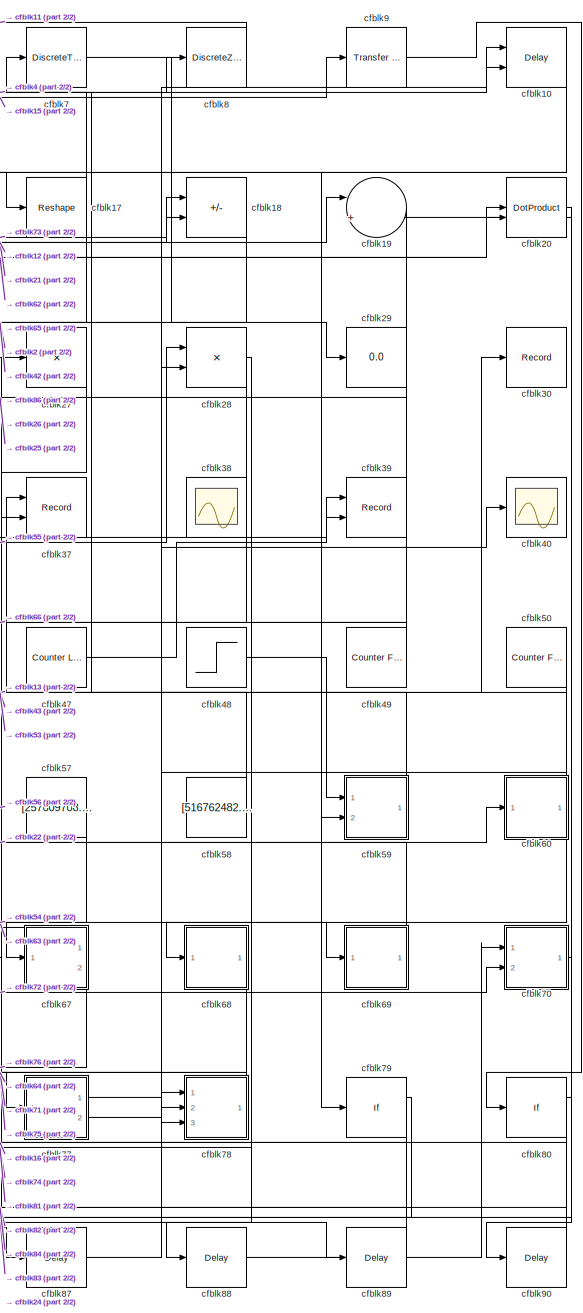
[diagram: root canvas - part 1/2, right side, full height]
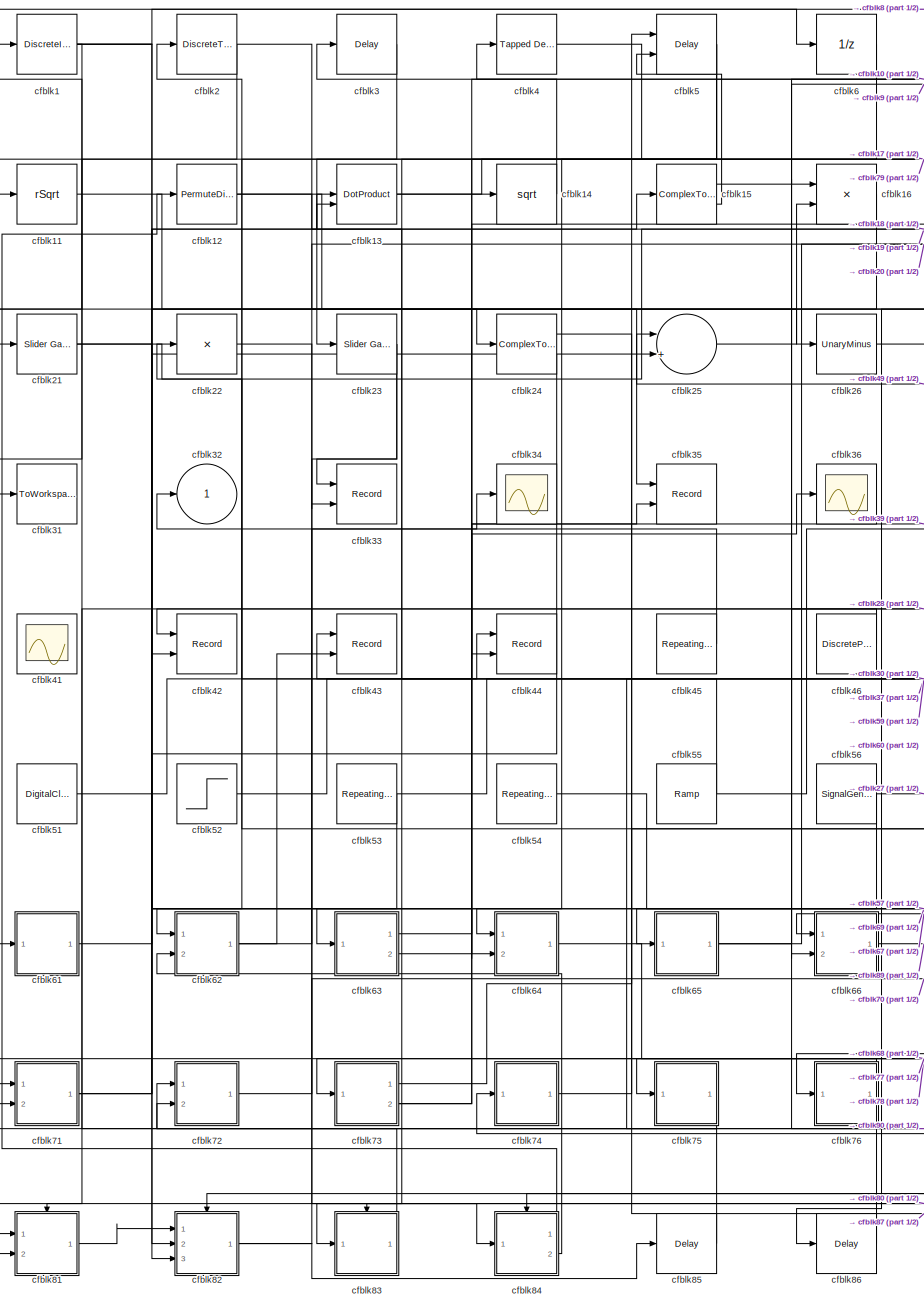
[diagram: root canvas - part 2/2, left side, full height]
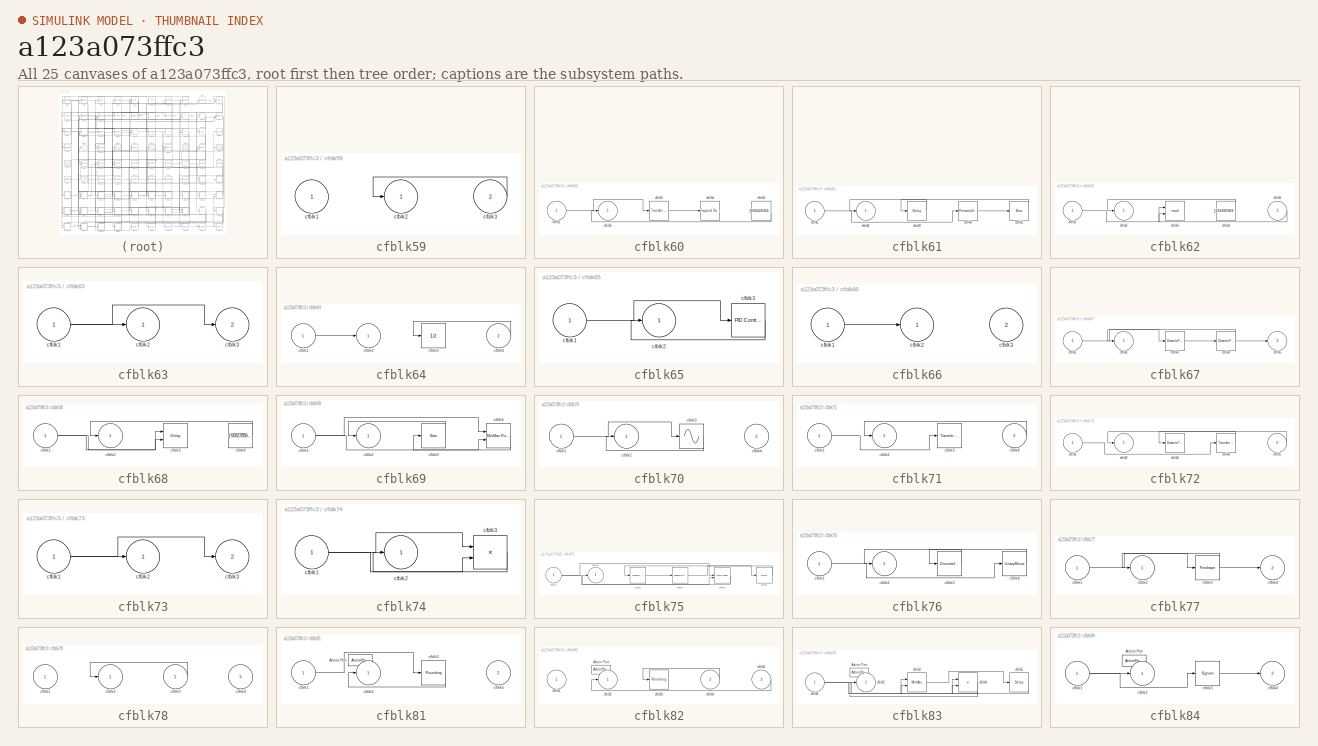
[diagram: thumbnail index - all 25 canvases of the model, root first then tree order]
MODEL slx_a123a073ffc3
KIND model
CONFIG AbsTol = auto
CONFIG EnableMultiTasking = off
CONFIG FixedStep = auto
CONFIG MaxStep = auto
CONFIG MinStep = auto
CONFIG RelTol = 1e-3
CONFIG SampleTimeConstraint = Unconstrained
CONFIG SolverName = VariableStepAuto
CONFIG StartTime = 0.0
CONFIG StopTime = 10.0
BLOCK [DiscreteIntegrator] cfblk1
  ICPrevOutput = DiscIntNeverNeededParam
  ICPrevScaledInput = DiscIntNeverNeededParam
  InitialConditionSetting = Auto
  Ports = [1, 1]
BLOCK [Delay] cfblk10
  DelayLengthSource = Input port
  InputPortMap = u0,p1
  Ports = [2, 1]
  SampleTime = 1
BLOCK [Sqrt] cfblk11
  AlgorithmType = Newton-Raphson
  Operator = rSqrt
BLOCK [PermuteDimensions] cfblk12
BLOCK [DotProduct] cfblk13
  OutDataTypeStr = Inherit: Inherit via internal rule
BLOCK [Sqrt] cfblk14
BLOCK [ComplexToRealImag] cfblk15
  Ports = [1, 2]
BLOCK [Product] cfblk16
  Inputs = **
  Ports = [2, 1]
BLOCK [Reshape] cfblk17
  Ports = [1, 1]
BLOCK [Sum] cfblk18
  IconShape = rectangular
  Inputs = -+
  Ports = [2, 1]
BLOCK [Sum] cfblk19
  Inputs = |++
  Ports = [2, 1]
BLOCK [DiscreteTransferFcn] cfblk2
  InputPortMap = u0
  Ports = [1, 1]
  SampleTime = 1
BLOCK [DotProduct] cfblk20
  OutDataTypeStr = Inherit: Inherit via internal rule
BLOCK [Reference] cfblk21  REF=simulink/Math
Operations/Slider
Gain
  Ports = [1, 1]
  SourceBlock = simulink/Math\nOperations/Slider\nGain
  SourceProductBaseCode = SL
  SourceType = Slider Gain
BLOCK [Product] cfblk22
  Inputs = *
  Ports = [1, 1]
BLOCK [Reference] cfblk23  REF=simulink/Math
Operations/Slider
Gain
  Ports = [1, 1]
  SourceBlock = simulink/Math\nOperations/Slider\nGain
  SourceProductBaseCode = SL
  SourceType = Slider Gain
BLOCK [ComplexToRealImag] cfblk24
  Ports = [1, 2]
BLOCK [Sum] cfblk25
  Inputs = |++
  Ports = [2, 1]
BLOCK [UnaryMinus] cfblk26
BLOCK [Product] cfblk27
  Inputs = *
  Ports = [1, 1]
BLOCK [Product] cfblk28
  Inputs = **
  Ports = [2, 1]
BLOCK [Display] cfblk29
  Decimation = 1
  Ports = [1]
BLOCK [Delay] cfblk3
  InputPortMap = u0
  Ports = [1, 1]
  SampleTime = 1
BLOCK [Record] cfblk30
  FileSettingsInternal = {"entries":[{"content":{"excelSettings":{"content":{},"type":"Streamout.ExcelSettings"}},"type":"Streamout.FileSettingStorage","uuid":"613e592d-018a-4d70-afd0-ab2d035ef272"}],"packageUris":["http://schema.mathworks.com/mf0/streamout_blocks/R2020a"],"version":"1.0"}
  Ports = [1]
  SignalsInternal = {"entries":[{"content":{"signals":[{"content":{"blockPath":["sampleModel278/cfblk30"],"channel":[],"dimensions":[1],"domain":"sampleModel278/cfblk30","lineColor":"#22b573","plots":[1],"port":1,"sid":[""],"signalID":11679,"signalName":"cfblk53"},"type":"RecordBlkView.Signal","uuid":"431496ca-f51d-4317-9847-c7ba54b4be8a"}]},"type":"RecordBlkView.InputSignals","uuid":"2f4c0acb-aa99-4c6b-98d7-5546c209...<+98ch>
  VisualizationBindings = {"sparklinesplugin":{"info":[{"bindingParametersList":[],"subplotID":1}]}}
BLOCK [ToWorkspace] cfblk31
  FixptAsFi = on
  MaxDataPoints = inf
  Ports = [1]
  SampleTime = -1
  SaveFormat = Timeseries
  VariableName = uakakch
BLOCK [Outport] cfblk32
BLOCK [Record] cfblk33
  CompatibilityTag = XY
  FileSettingsInternal = {"entries":[{"content":{"excelSettings":{"content":{},"type":"Streamout.ExcelSettings"}},"type":"Streamout.FileSettingStorage","uuid":"ffadc4b8-0dfd-40c9-9b9d-69bf48ab0bda"}],"packageUris":["http://schema.mathworks.com/mf0/streamout_blocks/R2020a"],"version":"1.0"}
  Layout = [1 1]
  Ports = [2]
  SignalsInternal = {"entries":[{"content":{"signals":[{"content":{"blockPath":["sampleModel278/cfblk33"],"channel":[],"dimensions":[1],"domain":"sampleModel278/cfblk33","lineColor":"#a2142f","plots":[1],"port":1,"sid":[""],"signalID":11723,"signalName":"cfblk23"},"type":"RecordBlkView.Signal","uuid":"c846ee53-8b50-4807-afbd-d3711eb7dd49"},{"content":{"blockPath":["sampleModel278/cfblk33"],"channel":[],"dimensions":[...<+385ch>
  VisualizationBindings = {"xyplotplugin":{"info":[{"series":[{"bindingParametersList":[{"parameter":"X-Axis","signalID":11723,"signalName":"cfblk23"},{"parameter":"Y-Axis","signalID":11727,"signalName":"cfblk23"}],"seriesID":14034}],"subplotID":1}]}}
BLOCK [Scope] cfblk34
  Floating = off
  NumInputPorts = 1
  Ports = [1]
BLOCK [Record] cfblk35
  CompatibilityTag = XY
  FileSettingsInternal = {"entries":[{"content":{"excelSettings":{"content":{},"type":"Streamout.ExcelSettings"}},"type":"Streamout.FileSettingStorage","uuid":"79ac4d0b-32cc-4147-9c5f-160e374bd6f1"}],"packageUris":["http://schema.mathworks.com/mf0/streamout_blocks/R2020a"],"version":"1.0"}
  Layout = [1 1]
  Ports = [2]
  SignalsInternal = {"entries":[{"content":{"signals":[{"content":{"blockPath":["sampleModel278/cfblk35"],"channel":[],"dimensions":[1,1],"domain":"sampleModel278/cfblk35","lineColor":"#a2142f","plots":[1],"port":1,"sid":[""],"signalID":11683,"signalName":"cfblk12"},"type":"RecordBlkView.Signal","uuid":"cee50c23-5377-4988-aab8-e70dc9d74091"},{"content":{"blockPath":["sampleModel278/cfblk35"],"channel":[],"dimensions"...<+389ch>
  VisualizationBindings = {"xyplotplugin":{"info":[{"series":[{"bindingParametersList":[{"parameter":"X-Axis","signalID":11683,"signalName":"cfblk12"},{"parameter":"Y-Axis","signalID":11687,"signalName":"cfblk73:2"}],"seriesID":45542}],"subplotID":1}]}}
BLOCK [Scope] cfblk36
  Floating = off
  NumInputPorts = 1
  Ports = [1]
BLOCK [Record] cfblk37
  CompatibilityTag = XY
  FileSettingsInternal = {"entries":[{"content":{"excelSettings":{"content":{},"type":"Streamout.ExcelSettings"}},"type":"Streamout.FileSettingStorage","uuid":"928dffd0-792b-4854-adee-ad8a3a54d234"}],"packageUris":["http://schema.mathworks.com/mf0/streamout_blocks/R2020a"],"version":"1.0"}
  Layout = [1 1]
  Ports = [2]
  SignalsInternal = {"entries":[{"content":{"signals":[{"content":{"blockPath":["sampleModel278/cfblk37"],"channel":[],"dimensions":[1],"domain":"sampleModel278/cfblk37","lineColor":"#a2142f","plots":[1],"port":1,"sid":[""],"signalID":11691,"signalName":"cfblk75"},"type":"RecordBlkView.Signal","uuid":"ddc6fa25-3967-467f-baa1-9360728fba62"},{"content":{"blockPath":["sampleModel278/cfblk37"],"channel":[],"dimensions":[...<+385ch>
  VisualizationBindings = {"xyplotplugin":{"info":[{"series":[{"bindingParametersList":[{"parameter":"X-Axis","signalID":11691,"signalName":"cfblk75"},{"parameter":"Y-Axis","signalID":11695,"signalName":"cfblk27"}],"seriesID":6918}],"subplotID":1}]}}
BLOCK [Scope] cfblk38
  Floating = on
  NumInputPorts = 1
  Ports = []
BLOCK [Record] cfblk39
  CompatibilityTag = XY
  FileSettingsInternal = {"entries":[{"content":{"excelSettings":{"content":{},"type":"Streamout.ExcelSettings"}},"type":"Streamout.FileSettingStorage","uuid":"a45da438-403e-40e9-b71e-507e939632aa"}],"packageUris":["http://schema.mathworks.com/mf0/streamout_blocks/R2020a"],"version":"1.0"}
  Layout = [1 1]
  Ports = [2]
  SignalsInternal = {"entries":[{"content":{"signals":[{"content":{"blockPath":["sampleModel278/cfblk39"],"channel":[],"dimensions":[1],"domain":"sampleModel278/cfblk39","lineColor":"#a2142f","plots":[1],"port":1,"sid":[""],"signalID":11731,"signalName":"cfblk47"},"type":"RecordBlkView.Signal","uuid":"eae857c1-9a3c-4252-906c-d31a20cc3c92"},{"content":{"blockPath":["sampleModel278/cfblk39"],"channel":[],"dimensions":[...<+387ch>
  VisualizationBindings = {"xyplotplugin":{"info":[{"series":[{"bindingParametersList":[{"parameter":"X-Axis","signalID":11731,"signalName":"cfblk47"},{"parameter":"Y-Axis","signalID":11735,"signalName":"cfblk63:2"}],"seriesID":663}],"subplotID":1}]}}
BLOCK [Reference] cfblk4  REF=simulink/Discrete/Tapped Delay
  Ports = [1, 1]
  SourceBlock = simulink/Discrete/Tapped Delay
  SourceProductBaseCode = SL
  SourceType = Tapped Delay Line
BLOCK [Scope] cfblk40
  Floating = off
  NumInputPorts = 1
  Ports = [1]
BLOCK [Scope] cfblk41
  Floating = on
  NumInputPorts = 1
  Ports = []
BLOCK [Record] cfblk42
  CompatibilityTag = XY
  FileSettingsInternal = {"entries":[{"content":{"excelSettings":{"content":{},"type":"Streamout.ExcelSettings"}},"type":"Streamout.FileSettingStorage","uuid":"d6f97b6e-fb10-41bd-b103-1d8caa88e39f"}],"packageUris":["http://schema.mathworks.com/mf0/streamout_blocks/R2020a"],"version":"1.0"}
  Layout = [1 1]
  Ports = [2]
  SignalsInternal = {"entries":[{"content":{"signals":[{"content":{"blockPath":["sampleModel278/cfblk42"],"channel":[],"dimensions":[1],"domain":"sampleModel278/cfblk42","lineColor":"#a2142f","plots":[1],"port":1,"sid":[""],"signalID":11699,"signalName":"cfblk46"},"type":"RecordBlkView.Signal","uuid":"251f6560-360e-4ff2-ba4c-21c8b0cdd92d"},{"content":{"blockPath":["sampleModel278/cfblk42"],"channel":[],"dimensions":[...<+387ch>
  VisualizationBindings = {"xyplotplugin":{"info":[{"series":[{"bindingParametersList":[{"parameter":"X-Axis","signalID":11699,"signalName":"cfblk46"},{"parameter":"Y-Axis","signalID":11703,"signalName":"cfblk18"}],"seriesID":19161}],"subplotID":1}]}}
BLOCK [Record] cfblk43
  CompatibilityTag = XY
  FileSettingsInternal = {"entries":[{"content":{"excelSettings":{"content":{},"type":"Streamout.ExcelSettings"}},"type":"Streamout.FileSettingStorage","uuid":"49f19f1c-f43c-45ea-9add-c7aba8d2dc19"}],"packageUris":["http://schema.mathworks.com/mf0/streamout_blocks/R2020a"],"version":"1.0"}
  Layout = [1 1]
  Ports = [2]
  SignalsInternal = {"entries":[{"content":{"signals":[{"content":{"blockPath":["sampleModel278/cfblk43"],"channel":[],"dimensions":[1],"domain":"sampleModel278/cfblk43","lineColor":"#a2142f","plots":[1],"port":1,"sid":[""],"signalID":11707,"signalName":"cfblk59"},"type":"RecordBlkView.Signal","uuid":"f262e0a1-0dd0-4162-bc04-4042543cb925"},{"content":{"blockPath":["sampleModel278/cfblk43"],"channel":[],"dimensions":[...<+385ch>
  VisualizationBindings = {"xyplotplugin":{"info":[{"series":[{"bindingParametersList":[{"parameter":"X-Axis","signalID":11707,"signalName":"cfblk59"},{"parameter":"Y-Axis","signalID":11711,"signalName":"cfblk62"}],"seriesID":42773}],"subplotID":1}]}}
BLOCK [Record] cfblk44
  CompatibilityTag = XY
  FileSettingsInternal = {"entries":[{"content":{"excelSettings":{"content":{},"type":"Streamout.ExcelSettings"}},"type":"Streamout.FileSettingStorage","uuid":"f9e977a4-f4ba-4cf2-828c-4992706f1371"}],"packageUris":["http://schema.mathworks.com/mf0/streamout_blocks/R2020a"],"version":"1.0"}
  Layout = [1 1]
  Ports = [2]
  SignalsInternal = {"entries":[{"content":{"signals":[{"content":{"blockPath":["sampleModel278/cfblk44"],"channel":[],"dimensions":[1],"domain":"sampleModel278/cfblk44","lineColor":"#a2142f","plots":[1],"port":1,"sid":[""],"signalID":11715,"signalName":"cfblk51"},"type":"RecordBlkView.Signal","uuid":"5493c28d-61f1-4e5c-a4f0-a367b1d50efd"},{"content":{"blockPath":["sampleModel278/cfblk44"],"channel":[],"dimensions":[...<+384ch>
  VisualizationBindings = {"xyplotplugin":{"info":[{"series":[{"bindingParametersList":[{"parameter":"X-Axis","signalID":11715,"signalName":"cfblk51"},{"parameter":"Y-Axis","signalID":11719,"signalName":"cfblk5"}],"seriesID":29617}],"subplotID":1}]}}
BLOCK [Reference] cfblk45  REF=simulink/Sources/Repeating
Sequence
  Ports = [0, 1]
  SourceBlock = simulink/Sources/Repeating\nSequence
  SourceProductBaseCode = SL
  SourceType = Repeating table
BLOCK [DiscretePulseGenerator] cfblk46
  Amplitude = [442704016.821276]
  Period = [38740735.778714]
  PhaseDelay = [4.000000]
  Ports = [0, 1]
  PulseType = Time based
  PulseWidth = 5
BLOCK [Reference] cfblk47  REF=simulink/Sources/Counter
Limited
  Ports = [0, 1]
  SourceBlock = simulink/Sources/Counter\nLimited
  SourceProductBaseCode = SL
  SourceType = Counter Limited
BLOCK [Step] cfblk48
  After = [-396190397.045518]
  Before = [285534383.298485]
  SampleTime = 0
  Time = [44.000000]
BLOCK [Reference] cfblk49  REF=simulink/Sources/Counter
Free-Running
  Ports = [0, 1]
  SourceBlock = simulink/Sources/Counter\nFree-Running
  SourceProductBaseCode = SL
  SourceType = Counter Free-Running
BLOCK [Delay] cfblk5
  DelayLengthSource = Input port
  InputPortMap = u0,p1
  Ports = [2, 1]
  SampleTime = 1
BLOCK [Reference] cfblk50  REF=simulink/Sources/Counter
Free-Running
  Ports = [0, 1]
  SourceBlock = simulink/Sources/Counter\nFree-Running
  SourceProductBaseCode = SL
  SourceType = Counter Free-Running
BLOCK [DigitalClock] cfblk51
BLOCK [Step] cfblk52
  After = [-150879894.686397]
  Before = [-93639301.169280]
  SampleTime = 0
  Time = [21.000000]
BLOCK [Reference] cfblk53  REF=simulink/Sources/Repeating
Sequence
Interpolated
  Ports = [0, 1]
  SourceBlock = simulink/Sources/Repeating\nSequence\nInterpolated
  SourceProductBaseCode = SL
  SourceType = Repeating Sequence Interpolated
BLOCK [Reference] cfblk54  REF=simulink/Sources/Repeating
Sequence
  Ports = [0, 1]
  SourceBlock = simulink/Sources/Repeating\nSequence
  SourceProductBaseCode = SL
  SourceType = Repeating table
BLOCK [Reference] cfblk55  REF=simulink/Sources/Ramp
  Ports = [0, 1]
  SourceBlock = simulink/Sources/Ramp
  SourceProductBaseCode = SL
  SourceType = Ramp
BLOCK [SignalGenerator] cfblk56
  Amplitude = [-774185668.504646]
  Ports = [0, 1]
  Units = rad/sec
  WaveForm = sawtooth
BLOCK [Constant] cfblk57
  SampleTime = 1
  Value = [257609708.377456]
BLOCK [Constant] cfblk58
  SampleTime = 1
  Value = [516762482.483653]
BLOCK [SubSystem] cfblk59
  Ports = [2, 1]
  RequestExecContextInheritance = off
BLOCK [Inport] cfblk59/cfblk1
BLOCK [Outport] cfblk59/cfblk2
BLOCK [Inport] cfblk59/cfblk3
  Port = 2
BLOCK [UnitDelay] cfblk6
  HasFrameUpgradeWarning = on
BLOCK [SubSystem] cfblk60
  Ports = [1, 1]
  RequestExecContextInheritance = off
BLOCK [Inport] cfblk60/cfblk1
BLOCK [Outport] cfblk60/cfblk2
BLOCK [Reference] cfblk60/cfblk3  REF=simulink/Discrete/Transfer Fcn
Lead or Lag
  Ports = [1, 1]
  SourceBlock = simulink/Discrete/Transfer Fcn\nLead or Lag
  SourceProductBaseCode = SL
  SourceType = Lead or Lag Compensator
BLOCK [Reference] cfblk60/cfblk4  REF=simulink/Discrete/Tapped Delay
  Ports = [1, 1]
  SourceBlock = simulink/Discrete/Tapped Delay
  SourceProductBaseCode = SL
  SourceType = Tapped Delay Line
BLOCK [Constant] cfblk60/cfblk5
  SampleTime = 1
  Value = [936428364.928162]
BLOCK [SubSystem] cfblk61
  Ports = [1, 1]
  RequestExecContextInheritance = off
BLOCK [Inport] cfblk61/cfblk1
BLOCK [Outport] cfblk61/cfblk2
BLOCK [Delay] cfblk61/cfblk3
  InputPortMap = u0
  Ports = [1, 1]
  SampleTime = 1
BLOCK [PermuteDimensions] cfblk61/cfblk4
BLOCK [Bias] cfblk61/cfblk5
  Bias = [554188684.425139]
  SaturateOnIntegerOverflow = off
BLOCK [SubSystem] cfblk62
  Ports = [2, 1]
  RequestExecContextInheritance = off
BLOCK [Inport] cfblk62/cfblk1
BLOCK [Outport] cfblk62/cfblk2
BLOCK [Math] cfblk62/cfblk3
  Operator = mod
  Ports = [2, 1]
BLOCK [Constant] cfblk62/cfblk4
  SampleTime = 1
  Value = [193490383.438334]
BLOCK [Inport] cfblk62/cfblk5
  Port = 2
BLOCK [SubSystem] cfblk63
  Ports = [1, 2]
  RequestExecContextInheritance = off
BLOCK [Inport] cfblk63/cfblk1
BLOCK [Outport] cfblk63/cfblk2
BLOCK [Outport] cfblk63/cfblk3
  Port = 2
BLOCK [SubSystem] cfblk64
  Ports = [2, 1]
  RequestExecContextInheritance = off
BLOCK [Inport] cfblk64/cfblk1
BLOCK [Outport] cfblk64/cfblk2
BLOCK [UnitDelay] cfblk64/cfblk3
  HasFrameUpgradeWarning = on
BLOCK [Inport] cfblk64/cfblk4
  Port = 2
BLOCK [SubSystem] cfblk65
  Ports = [1, 1]
  RequestExecContextInheritance = off
BLOCK [Inport] cfblk65/cfblk1
BLOCK [Outport] cfblk65/cfblk2
BLOCK [Reference] cfblk65/cfblk3  REF=slpidlib/PID Controller
  Ports = [1, 1]
  SourceBlock = slpidlib/PID Controller
  SourceProductBaseCode = SL
  SourceType = PID 1dof
BLOCK [SubSystem] cfblk66
  Ports = [2, 1]
  RequestExecContextInheritance = off
BLOCK [Inport] cfblk66/cfblk1
BLOCK [Outport] cfblk66/cfblk2
BLOCK [Inport] cfblk66/cfblk3
  Port = 2
BLOCK [SubSystem] cfblk67
  Ports = [1, 2]
  RequestExecContextInheritance = off
BLOCK [Inport] cfblk67/cfblk1
BLOCK [Outport] cfblk67/cfblk2
BLOCK [DiscreteFilter] cfblk67/cfblk3
  InputPortMap = u0
  Ports = [1, 1]
  SampleTime = 1
BLOCK [DiscreteFir] cfblk67/cfblk4
  InputPortMap = u0
  OutputPortMap = o0
  Ports = [1, 1]
  SampleTime = 1
BLOCK [Outport] cfblk67/cfblk5
  Port = 2
BLOCK [SubSystem] cfblk68
  Ports = [1, 1]
  RequestExecContextInheritance = off
BLOCK [Inport] cfblk68/cfblk1
BLOCK [Outport] cfblk68/cfblk2
BLOCK [Delay] cfblk68/cfblk3
  DelayLengthSource = Input port
  InputPortMap = u0,p1
  Ports = [2, 1]
  SampleTime = 1
BLOCK [Constant] cfblk68/cfblk4
  SampleTime = 1
  Value = [-50827859.087769]
BLOCK [SubSystem] cfblk69
  Ports = [1, 1]
  RequestExecContextInheritance = off
BLOCK [Inport] cfblk69/cfblk1
BLOCK [Outport] cfblk69/cfblk2
BLOCK [Bias] cfblk69/cfblk3
  Bias = [-483781049.236620]
  SaturateOnIntegerOverflow = off
BLOCK [Reference] cfblk69/cfblk4  REF=simulink/Math
Operations/MinMax
Running
Resettable
  Ports = [2, 1]
  SourceBlock = simulink/Math\nOperations/MinMax\nRunning\nResettable
  SourceProductBaseCode = SL
  SourceType = MinMax Running Resettable
BLOCK [DiscreteTransferFcn] cfblk7
  InputPortMap = u0
  Ports = [1, 1]
  SampleTime = 1
BLOCK [SubSystem] cfblk70
  Ports = [2, 1]
  RequestExecContextInheritance = off
BLOCK [Inport] cfblk70/cfblk1
BLOCK [Outport] cfblk70/cfblk2
BLOCK [Sin] cfblk70/cfblk3
  Ports = [1, 1]
  SampleTime = 0
  TimeSource = Use external signal
BLOCK [Inport] cfblk70/cfblk4
  Port = 2
BLOCK [SubSystem] cfblk71
  Ports = [2, 1]
  RequestExecContextInheritance = off
BLOCK [Inport] cfblk71/cfblk1
BLOCK [Outport] cfblk71/cfblk2
BLOCK [Reference] cfblk71/cfblk3  REF=simulink/Discrete/Transfer Fcn
First Order
  Ports = [1, 1]
  SourceBlock = simulink/Discrete/Transfer Fcn\nFirst Order
  SourceProductBaseCode = SL
  SourceType = First Order Transfer Fcn
BLOCK [Inport] cfblk71/cfblk4
  Port = 2
BLOCK [SubSystem] cfblk72
  Ports = [2, 1]
  RequestExecContextInheritance = off
BLOCK [Inport] cfblk72/cfblk1
BLOCK [Outport] cfblk72/cfblk2
BLOCK [DiscreteTransferFcn] cfblk72/cfblk3
  InputPortMap = u0
  Ports = [1, 1]
  SampleTime = 1
BLOCK [Reference] cfblk72/cfblk4  REF=simulink/Discrete/Transfer Fcn
Real Zero
  Ports = [1, 1]
  SourceBlock = simulink/Discrete/Transfer Fcn\nReal Zero
  SourceProductBaseCode = SL
  SourceType = Transfer Fcn Real Zero
BLOCK [Inport] cfblk72/cfblk5
  Port = 2
BLOCK [SubSystem] cfblk73
  Ports = [1, 2]
  RequestExecContextInheritance = off
BLOCK [Inport] cfblk73/cfblk1
BLOCK [Outport] cfblk73/cfblk2
BLOCK [Outport] cfblk73/cfblk3
  Port = 2
BLOCK [SubSystem] cfblk74
  Ports = [1, 1]
  RequestExecContextInheritance = off
BLOCK [Inport] cfblk74/cfblk1
BLOCK [Outport] cfblk74/cfblk2
BLOCK [Product] cfblk74/cfblk3
  Ports = [2, 1]
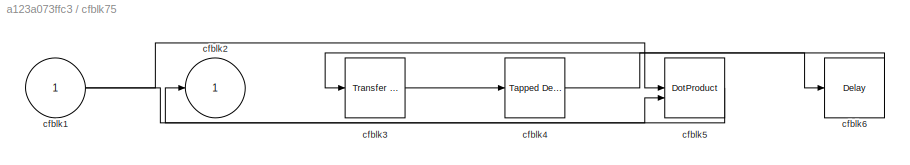
BLOCK [SubSystem] cfblk75
  Ports = [1, 1]
  RequestExecContextInheritance = off
BLOCK [Inport] cfblk75/cfblk1
BLOCK [Outport] cfblk75/cfblk2
BLOCK [Reference] cfblk75/cfblk3  REF=simulink/Discrete/Transfer Fcn
Lead or Lag
  Ports = [1, 1]
  SourceBlock = simulink/Discrete/Transfer Fcn\nLead or Lag
  SourceProductBaseCode = SL
  SourceType = Lead or Lag Compensator
BLOCK [Reference] cfblk75/cfblk4  REF=simulink/Discrete/Tapped Delay
  Ports = [1, 1]
  SourceBlock = simulink/Discrete/Tapped Delay
  SourceProductBaseCode = SL
  SourceType = Tapped Delay Line
BLOCK [DotProduct] cfblk75/cfblk5
  OutDataTypeStr = Inherit: Inherit via internal rule
BLOCK [Delay] cfblk75/cfblk6
  InputPortMap = u0
  Ports = [1, 1]
  SampleTime = 1
BLOCK [SubSystem] cfblk76
  Ports = [1, 1]
  RequestExecContextInheritance = off
BLOCK [Inport] cfblk76/cfblk1
BLOCK [Outport] cfblk76/cfblk2
BLOCK [DiscreteIntegrator] cfblk76/cfblk3
  ICPrevOutput = DiscIntNeverNeededParam
  ICPrevScaledInput = DiscIntNeverNeededParam
  InitialConditionSetting = Auto
  Ports = [1, 1]
BLOCK [UnaryMinus] cfblk76/cfblk4
BLOCK [SubSystem] cfblk77
  Ports = [1, 2]
  RequestExecContextInheritance = off
BLOCK [Inport] cfblk77/cfblk1
BLOCK [Outport] cfblk77/cfblk2
BLOCK [Reshape] cfblk77/cfblk3
  Ports = [1, 1]
BLOCK [Outport] cfblk77/cfblk4
  Port = 2
BLOCK [SubSystem] cfblk78
  Ports = [3, 1]
  RequestExecContextInheritance = off
BLOCK [Inport] cfblk78/cfblk1
BLOCK [Outport] cfblk78/cfblk2
BLOCK [Inport] cfblk78/cfblk3
  Port = 2
BLOCK [Inport] cfblk78/cfblk4
  Port = 3
BLOCK [If] cfblk79
  IfExpression = u1 >= 0
  Ports = [1, 2]
  SampleTime = 1
BLOCK [DiscreteZeroPole] cfblk8
  Gain = 1
  Poles = [0 0.5]
BLOCK [If] cfblk80
  IfExpression = u1 >= 0
  Ports = [1, 2]
  SampleTime = 1
BLOCK [SubSystem] cfblk81
  Ports = [2, 1, 0, 0, 0, 0, 0, 1]
  RequestExecContextInheritance = off
  TreatAsAtomicUnit = on
BLOCK [ActionPort] cfblk81/Action Port
  ActionPortLabel = if(u1 >= 0)
BLOCK [Inport] cfblk81/cfblk1
BLOCK [Outport] cfblk81/cfblk2
BLOCK [Rounding] cfblk81/cfblk3
BLOCK [Inport] cfblk81/cfblk4
  Port = 2
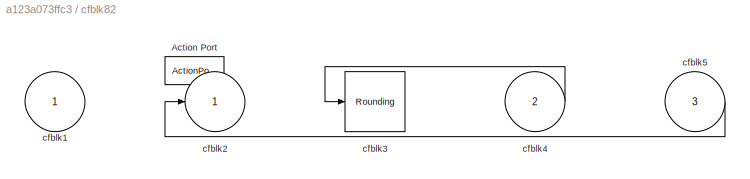
BLOCK [SubSystem] cfblk82
  Ports = [3, 1, 0, 0, 0, 0, 0, 1]
  RequestExecContextInheritance = off
  TreatAsAtomicUnit = on
BLOCK [ActionPort] cfblk82/Action Port
  ActionPortLabel = else
BLOCK [Inport] cfblk82/cfblk1
BLOCK [Outport] cfblk82/cfblk2
BLOCK [Rounding] cfblk82/cfblk3
BLOCK [Inport] cfblk82/cfblk4
  Port = 2
BLOCK [Inport] cfblk82/cfblk5
  Port = 3
BLOCK [SubSystem] cfblk83
  Ports = [1, 1, 0, 0, 0, 0, 0, 1]
  RequestExecContextInheritance = off
  TreatAsAtomicUnit = on
BLOCK [ActionPort] cfblk83/Action Port
  ActionPortLabel = if(u1 >= 0)
BLOCK [Inport] cfblk83/cfblk1
BLOCK [Outport] cfblk83/cfblk2
BLOCK [MinMax] cfblk83/cfblk3
  Function = max
  Inputs = 2
  Ports = [2, 1]
BLOCK [Product] cfblk83/cfblk4
  Inputs = **
  Ports = [2, 1]
BLOCK [Delay] cfblk83/cfblk5
  InputPortMap = u0
  Ports = [1, 1]
BLOCK [SubSystem] cfblk84
  Ports = [1, 2, 0, 0, 0, 0, 0, 1]
  RequestExecContextInheritance = off
  TreatAsAtomicUnit = on
BLOCK [ActionPort] cfblk84/Action Port
  ActionPortLabel = else
BLOCK [Inport] cfblk84/cfblk1
BLOCK [Outport] cfblk84/cfblk2
BLOCK [Signum] cfblk84/cfblk3
BLOCK [Outport] cfblk84/cfblk4
  Port = 2
BLOCK [Delay] cfblk85
  InputPortMap = u0
  Ports = [1, 1]
  SampleTime = 1
BLOCK [Delay] cfblk86
  InputPortMap = u0
  Ports = [1, 1]
  SampleTime = 1
BLOCK [Delay] cfblk87
  InputPortMap = u0
  Ports = [1, 1]
  SampleTime = 1
BLOCK [Delay] cfblk88
  InputPortMap = u0
  Ports = [1, 1]
  SampleTime = 1
BLOCK [Delay] cfblk89
  InputPortMap = u0
  Ports = [1, 1]
  SampleTime = 1
BLOCK [Reference] cfblk9  REF=simulink/Discrete/Transfer Fcn
Real Zero
  Ports = [1, 1]
  SourceBlock = simulink/Discrete/Transfer Fcn\nReal Zero
  SourceProductBaseCode = SL
  SourceType = Transfer Fcn Real Zero
BLOCK [Delay] cfblk90
  InputPortMap = u0
  Ports = [1, 1]
  SampleTime = 1
NET cfblk10:1 -> cfblk59:2, cfblk81:2
LINE cfblk11:1 -> cfblk24:1
NET cfblk12:1 -> cfblk18:2, cfblk35:1
NET cfblk13:1 -> cfblk17:1, cfblk8:1
LINE cfblk14:1 -> cfblk3:1
LINE cfblk15:1 -> cfblk9:1
LINE cfblk15:2 -> cfblk5:2
LINE cfblk16:1 -> cfblk61:1
NET cfblk17:1 -> cfblk4:1, cfblk86:1
LINE cfblk18:1 -> cfblk42:2
NET cfblk19:1 -> cfblk66:2, cfblk88:1
NET cfblk1:1 -> cfblk26:1, cfblk31:1, cfblk64:2, cfblk6:1
LINE cfblk20:1 -> cfblk90:1
NET cfblk21:1 -> cfblk19:1, cfblk69:1
LINE cfblk22:1 -> cfblk84:1
NET cfblk23:1 -> cfblk33:1, cfblk33:2
LINE cfblk24:1 -> cfblk87:1
LINE cfblk24:2 -> cfblk82:3
LINE cfblk25:1 -> cfblk16:2
LINE cfblk26:1 -> cfblk78:3
LINE cfblk27:1 -> cfblk37:2
NET cfblk28:1 -> cfblk74:1, cfblk81:1
NET cfblk2:1 -> cfblk21:1, cfblk28:2
LINE cfblk3:1 -> cfblk23:1
LINE cfblk45:1 -> cfblk32:1
LINE cfblk46:1 -> cfblk42:1
LINE cfblk47:1 -> cfblk39:1
LINE cfblk48:1 -> cfblk59:1
LINE cfblk49:1 -> cfblk25:1
LINE cfblk4:1 -> cfblk79:1
LINE cfblk50:1 -> cfblk78:2
LINE cfblk51:1 -> cfblk44:1
LINE cfblk52:1 -> cfblk14:1
NET cfblk53:1 -> cfblk30:1, cfblk82:2
LINE cfblk54:1 -> cfblk67:1
NET cfblk55:1 -> cfblk28:1, cfblk2:1
NET cfblk56:1 -> cfblk27:1, cfblk65:1
LINE cfblk57:1 -> cfblk63:1
LINE cfblk58:1 -> cfblk7:1
LINE cfblk59/cfblk3:1 -> cfblk59/cfblk2:1
LINE cfblk59:1 -> cfblk43:1
NET cfblk5:1 -> cfblk44:2, cfblk62:1, cfblk83:1
LINE cfblk60/cfblk1:1 -> cfblk60/cfblk3:1
LINE cfblk60/cfblk3:1 -> cfblk60/cfblk4:1
LINE cfblk60/cfblk5:1 -> cfblk60/cfblk2:1
NET cfblk60:1 -> cfblk13:2, cfblk68:1
LINE cfblk61/cfblk1:1 -> cfblk61/cfblk4:1
LINE cfblk61/cfblk3:1 -> cfblk61/cfblk2:1
LINE cfblk61/cfblk4:1 -> cfblk61/cfblk5:1
LINE cfblk61/cfblk5:1 -> cfblk61/cfblk3:1
LINE cfblk61:1 -> cfblk15:1
LINE cfblk62/cfblk1:1 -> cfblk62/cfblk3:2
LINE cfblk62/cfblk4:1 -> cfblk62/cfblk2:1
LINE cfblk62/cfblk5:1 -> cfblk62/cfblk3:1
NET cfblk62:1 -> cfblk20:2, cfblk43:2
NET cfblk63/cfblk1:1 -> cfblk63/cfblk2:1, cfblk63/cfblk3:1
LINE cfblk63:1 -> cfblk36:1
LINE cfblk63:2 -> cfblk39:2
LINE cfblk64/cfblk1:1 -> cfblk64/cfblk2:1
LINE cfblk64/cfblk4:1 -> cfblk64/cfblk3:1
LINE cfblk64:1 -> cfblk77:1
LINE cfblk65/cfblk1:1 -> cfblk65/cfblk3:1
LINE cfblk65/cfblk3:1 -> cfblk65/cfblk2:1
NET cfblk65:1 -> cfblk10:2, cfblk20:1
LINE cfblk66/cfblk1:1 -> cfblk66/cfblk2:1
LINE cfblk66:1 -> cfblk89:1
LINE cfblk67/cfblk1:1 -> cfblk67/cfblk3:1
LINE cfblk67/cfblk3:1 -> cfblk67/cfblk4:1
NET cfblk67/cfblk4:1 -> cfblk67/cfblk2:1, cfblk67/cfblk5:1
LINE cfblk67:1 -> cfblk66:1
LINE cfblk67:2 -> cfblk76:1
NET cfblk68/cfblk1:1 -> cfblk68/cfblk3:1, cfblk68/cfblk3:2
LINE cfblk68/cfblk4:1 -> cfblk68/cfblk2:1
LINE cfblk68:1 -> cfblk75:1
NET cfblk69/cfblk1:1 -> cfblk69/cfblk4:1, cfblk69/cfblk4:2
LINE cfblk69/cfblk3:1 -> cfblk69/cfblk2:1
LINE cfblk69/cfblk4:1 -> cfblk69/cfblk3:1
LINE cfblk69:1 -> cfblk22:1
LINE cfblk6:1 -> cfblk64:1
LINE cfblk70/cfblk1:1 -> cfblk70/cfblk3:1
LINE cfblk70/cfblk3:1 -> cfblk70/cfblk2:1
LINE cfblk70:1 -> cfblk19:2
LINE cfblk71/cfblk1:1 -> cfblk71/cfblk3:1
LINE cfblk71/cfblk4:1 -> cfblk71/cfblk2:1
NET cfblk71:1 -> cfblk13:1, cfblk25:2
LINE cfblk72/cfblk1:1 -> cfblk72/cfblk4:1
LINE cfblk72/cfblk4:1 -> cfblk72/cfblk3:1
LINE cfblk72/cfblk5:1 -> cfblk72/cfblk2:1
LINE cfblk72:1 -> cfblk70:2
NET cfblk73/cfblk1:1 -> cfblk73/cfblk2:1, cfblk73/cfblk3:1
LINE cfblk73:1 -> cfblk5:1
NET cfblk73:2 -> cfblk18:1, cfblk35:2
NET cfblk74/cfblk1:1 -> cfblk74/cfblk3:1, cfblk74/cfblk3:2
LINE cfblk74/cfblk3:1 -> cfblk74/cfblk2:1
LINE cfblk74:1 -> cfblk60:1
NET cfblk75/cfblk1:1 -> cfblk75/cfblk5:1, cfblk75/cfblk5:2
LINE cfblk75/cfblk3:1 -> cfblk75/cfblk4:1
LINE cfblk75/cfblk4:1 -> cfblk75/cfblk6:1
LINE cfblk75/cfblk5:1 -> cfblk75/cfblk2:1
LINE cfblk75/cfblk6:1 -> cfblk75/cfblk3:1
LINE cfblk75:1 -> cfblk37:1
LINE cfblk76/cfblk1:1 -> cfblk76/cfblk4:1
LINE cfblk76/cfblk3:1 -> cfblk76/cfblk2:1
LINE cfblk76/cfblk4:1 -> cfblk76/cfblk3:1
LINE cfblk76:1 -> cfblk73:1
LINE cfblk77/cfblk1:1 -> cfblk77/cfblk3:1
NET cfblk77/cfblk3:1 -> cfblk77/cfblk2:1, cfblk77/cfblk4:1
LINE cfblk77:1 -> cfblk40:1
LINE cfblk77:2 -> cfblk10:1
LINE cfblk78/cfblk3:1 -> cfblk78/cfblk2:1
LINE cfblk78:1 -> cfblk71:1
LINE cfblk79:1 -> cfblk81:ifaction
LINE cfblk79:2 -> cfblk82:ifaction
LINE cfblk7:1 -> cfblk29:1
LINE cfblk80:1 -> cfblk83:ifaction
LINE cfblk80:2 -> cfblk84:ifaction
LINE cfblk81/cfblk1:1 -> cfblk81/cfblk3:1
LINE cfblk81/cfblk3:1 -> cfblk81/cfblk2:1
LINE cfblk81:1 -> cfblk82:1
LINE cfblk82/cfblk4:1 -> cfblk82/cfblk3:1
LINE cfblk82/cfblk5:1 -> cfblk82/cfblk2:1
NET cfblk82:1 -> cfblk34:1, cfblk85:1
NET cfblk83/cfblk1:1 -> cfblk83/cfblk3:1, cfblk83/cfblk4:1
LINE cfblk83/cfblk3:1 -> cfblk83/cfblk5:1
NET cfblk83/cfblk4:1 -> cfblk83/cfblk2:1, cfblk83/cfblk3:2
LINE cfblk83/cfblk5:1 -> cfblk83/cfblk4:2
LINE cfblk83:1 -> cfblk72:1
NET cfblk84/cfblk1:1 -> cfblk84/cfblk2:1, cfblk84/cfblk3:1
LINE cfblk84/cfblk3:1 -> cfblk84/cfblk4:1
LINE cfblk84:1 -> cfblk12:1
LINE cfblk84:2 -> cfblk62:2
LINE cfblk85:1 -> cfblk1:1
LINE cfblk86:1 -> cfblk71:2
LINE cfblk87:1 -> cfblk78:1
LINE cfblk88:1 -> cfblk70:1
LINE cfblk89:1 -> cfblk72:2
LINE cfblk8:1 -> cfblk11:1
LINE cfblk90:1 -> cfblk16:1
LINE cfblk9:1 -> cfblk80:1
note: NET lines group one-source signal fan-out (src -> all destinations, sorted); 1:1 wires keep LINE
